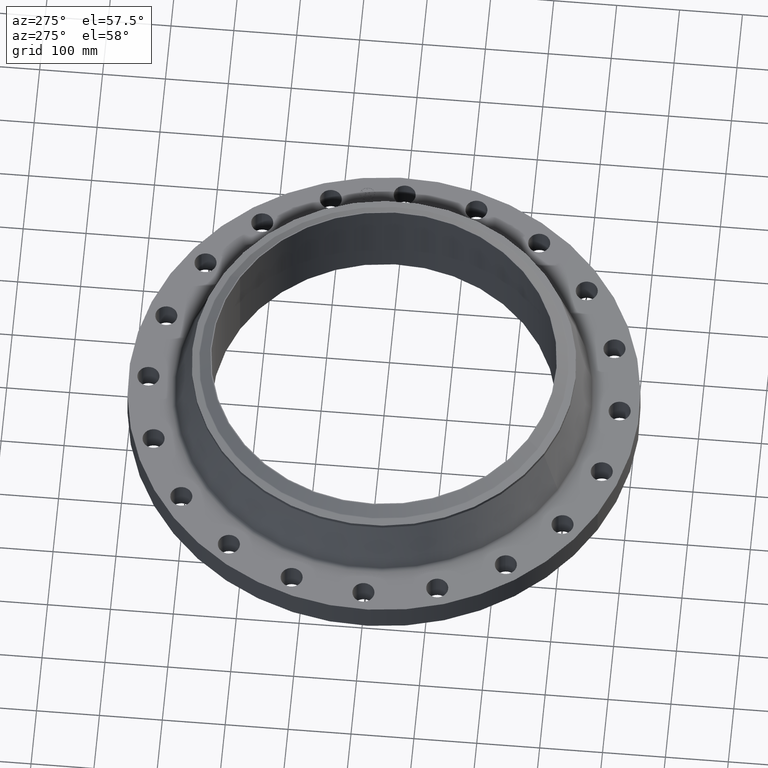
[diagram: clean part render]
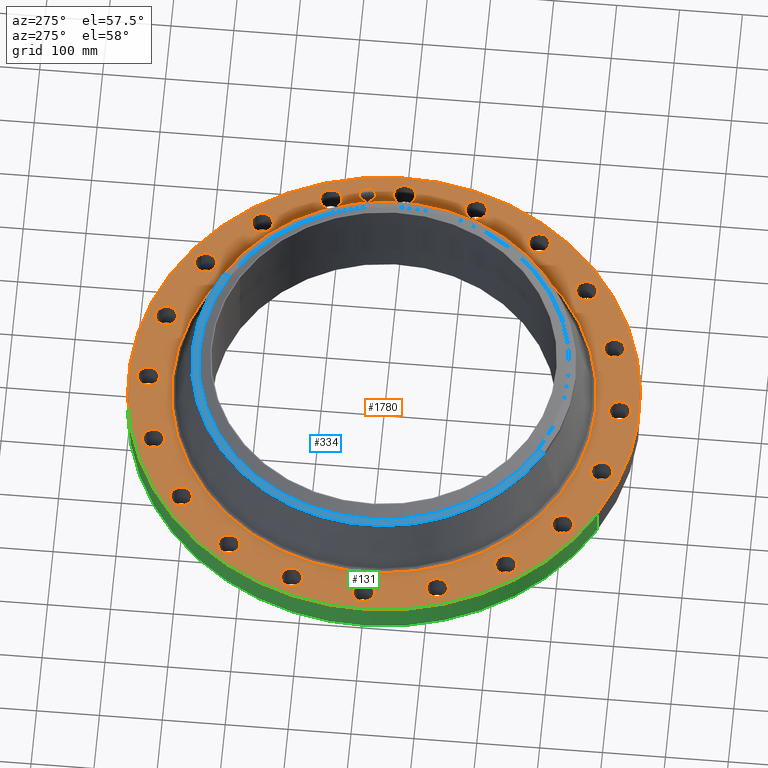
[diagram: same view with three faces highlighted in distinct colors, each labeled with its STEP entity id]
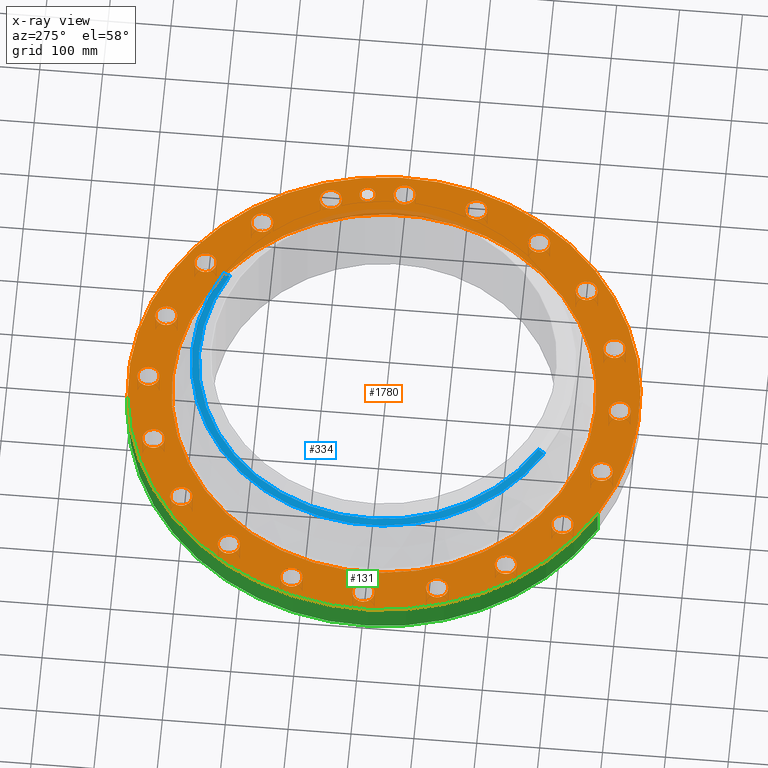
[diagram: x-ray of the same camera — body ghosted, the three highlighted faces saturated]
A machine part, auxiliary view with three faces highlighted in distinct colors.
The next image is the same camera in x-ray (body ghosted, the three faces saturated) — at least one of them is partly hidden behind the body in this view.
Their STEP definitions:

[orange] entity #1780 — the highlighted planar face has unit normal (0, 0, -1).
#65=AXIS2_PLACEMENT_3D('Circle Axis2P3D',#63,#64,$) ;
#82=AXIS2_PLACEMENT_3D('Circle Axis2P3D',#80,#81,$) ;
#115=AXIS2_PLACEMENT_3D('Circle Axis2P3D',#113,#114,$) ;
#139=AXIS2_PLACEMENT_3D('Circle Axis2P3D',#137,#138,$) ;
#156=AXIS2_PLACEMENT_3D('Circle Axis2P3D',#154,#155,$) ;
#191=AXIS2_PLACEMENT_3D('Circle Axis2P3D',#189,#190,$) ;
#873=AXIS2_PLACEMENT_3D('Circle Axis2P3D',#871,#872,$) ;
#885=AXIS2_PLACEMENT_3D('Circle Axis2P3D',#883,#884,$) ;
#916=AXIS2_PLACEMENT_3D('Circle Axis2P3D',#914,#915,$) ;
#928=AXIS2_PLACEMENT_3D('Circle Axis2P3D',#926,#927,$) ;
#959=AXIS2_PLACEMENT_3D('Circle Axis2P3D',#957,#958,$) ;
#971=AXIS2_PLACEMENT_3D('Circle Axis2P3D',#969,#970,$) ;
#1002=AXIS2_PLACEMENT_3D('Circle Axis2P3D',#1000,#1001,$) ;
#1014=AXIS2_PLACEMENT_3D('Circle Axis2P3D',#1012,#1013,$) ;
#1045=AXIS2_PLACEMENT_3D('Circle Axis2P3D',#1043,#1044,$) ;
#1057=AXIS2_PLACEMENT_3D('Circle Axis2P3D',#1055,#1056,$) ;
#1088=AXIS2_PLACEMENT_3D('Circle Axis2P3D',#1086,#1087,$) ;
#1100=AXIS2_PLACEMENT_3D('Circle Axis2P3D',#1098,#1099,$) ;
#1131=AXIS2_PLACEMENT_3D('Circle Axis2P3D',#1129,#1130,$) ;
#1143=AXIS2_PLACEMENT_3D('Circle Axis2P3D',#1141,#1142,$) ;
#1174=AXIS2_PLACEMENT_3D('Circle Axis2P3D',#1172,#1173,$) ;
#1186=AXIS2_PLACEMENT_3D('Circle Axis2P3D',#1184,#1185,$) ;
#1217=AXIS2_PLACEMENT_3D('Circle Axis2P3D',#1215,#1216,$) ;
#1229=AXIS2_PLACEMENT_3D('Circle Axis2P3D',#1227,#1228,$) ;
#1260=AXIS2_PLACEMENT_3D('Circle Axis2P3D',#1258,#1259,$) ;
#1272=AXIS2_PLACEMENT_3D('Circle Axis2P3D',#1270,#1271,$) ;
#1303=AXIS2_PLACEMENT_3D('Circle Axis2P3D',#1301,#1302,$) ;
#1315=AXIS2_PLACEMENT_3D('Circle Axis2P3D',#1313,#1314,$) ;
#1346=AXIS2_PLACEMENT_3D('Circle Axis2P3D',#1344,#1345,$) ;
#1358=AXIS2_PLACEMENT_3D('Circle Axis2P3D',#1356,#1357,$) ;
#1389=AXIS2_PLACEMENT_3D('Circle Axis2P3D',#1387,#1388,$) ;
#1401=AXIS2_PLACEMENT_3D('Circle Axis2P3D',#1399,#1400,$) ;
#1432=AXIS2_PLACEMENT_3D('Circle Axis2P3D',#1430,#1431,$) ;
#1444=AXIS2_PLACEMENT_3D('Circle Axis2P3D',#1442,#1443,$) ;
#1475=AXIS2_PLACEMENT_3D('Circle Axis2P3D',#1473,#1474,$) ;
#1487=AXIS2_PLACEMENT_3D('Circle Axis2P3D',#1485,#1486,$) ;
#1518=AXIS2_PLACEMENT_3D('Circle Axis2P3D',#1516,#1517,$) ;
#1530=AXIS2_PLACEMENT_3D('Circle Axis2P3D',#1528,#1529,$) ;
#1561=AXIS2_PLACEMENT_3D('Circle Axis2P3D',#1559,#1560,$) ;
#1573=AXIS2_PLACEMENT_3D('Circle Axis2P3D',#1571,#1572,$) ;
#1604=AXIS2_PLACEMENT_3D('Circle Axis2P3D',#1602,#1603,$) ;
#1616=AXIS2_PLACEMENT_3D('Circle Axis2P3D',#1614,#1615,$) ;
#1647=AXIS2_PLACEMENT_3D('Circle Axis2P3D',#1645,#1646,$) ;
#1659=AXIS2_PLACEMENT_3D('Circle Axis2P3D',#1657,#1658,$) ;
#1672=AXIS2_PLACEMENT_3D('Plane Axis2P3D',#1669,#1670,#1671) ;
#1764=AXIS2_PLACEMENT_3D('Circle Axis2P3D',#1762,#1763,$) ;
#1773=AXIS2_PLACEMENT_3D('Circle Axis2P3D',#1771,#1772,$) ;
#46=CARTESIAN_POINT('Vertex',(14.1444680324,0.330803621638,1.88000000001)) ;
#60=CARTESIAN_POINT('Vertex',(15.3555319678,-0.330803621638,1.88000000001)) ;
#63=CARTESIAN_POINT('Axis2P3D Location',(14.7500000001,0.,1.88000000001)) ;
#80=CARTESIAN_POINT('Axis2P3D Location',(14.7500000001,0.,1.88000000001)) ;
#110=CARTESIAN_POINT('Vertex',(-7.6708086177,-14.0413209903,1.88000000001)) ;
#113=CARTESIAN_POINT('Axis2P3D Location',(0.,0.,1.88000000001)) ;
#117=CARTESIAN_POINT('Vertex',(7.6708086177,14.0413209903,1.88000000001)) ;
#137=CARTESIAN_POINT('Axis2P3D Location',(0.,0.,1.88000000001)) ;
#154=CARTESIAN_POINT('Axis2P3D Location',(0.,0.,1.88000000001)) ;
#158=CARTESIAN_POINT('Vertex',(6.35074100419,11.6249534319,1.88000000001)) ;
#160=CARTESIAN_POINT('Vertex',(-6.35074100419,-11.6249534319,1.88000000001)) ;
#189=CARTESIAN_POINT('Axis2P3D Location',(0.,0.,1.88000000001)) ;
#861=CARTESIAN_POINT('Vertex',(-13.5544124326,4.05626805842,1.88000000001)) ;
#868=CARTESIAN_POINT('Vertex',(-14.5017547982,5.05973327568,1.88000000001)) ;
#871=CARTESIAN_POINT('Axis2P3D Location',(-14.0280836154,4.55800066705,1.88000000001)) ;
#883=CARTESIAN_POINT('Axis2P3D Location',(-14.0280836154,4.55800066705,1.88000000001)) ;
#904=CARTESIAN_POINT('Vertex',(11.6375565048,-8.04628395923,1.88000000001)) ;
#911=CARTESIAN_POINT('Vertex',(12.2284448294,-9.29338098346,1.88000000001)) ;
#914=CARTESIAN_POINT('Axis2P3D Location',(11.9330006671,-8.66983247135,1.88000000001)) ;
#926=CARTESIAN_POINT('Axis2P3D Location',(11.9330006671,-8.66983247135,1.88000000001)) ;
#947=CARTESIAN_POINT('Vertex',(-11.6375565048,8.04628395923,1.88000000001)) ;
#954=CARTESIAN_POINT('Vertex',(-12.2284448294,9.29338098346,1.88000000001)) ;
#957=CARTESIAN_POINT('Axis2P3D Location',(-11.9330006671,8.66983247135,1.88000000001)) ;
#969=CARTESIAN_POINT('Axis2P3D Location',(-11.9330006671,8.66983247135,1.88000000001)) ;
#990=CARTESIAN_POINT('Vertex',(8.58153546265,-11.2486735244,1.88000000001)) ;
#997=CARTESIAN_POINT('Vertex',(8.75812948005,-12.6173278098,1.88000000001)) ;
#1000=CARTESIAN_POINT('Axis2P3D Location',(8.66983247135,-11.9330006671,1.88000000001)) ;
#1012=CARTESIAN_POINT('Axis2P3D Location',(8.66983247135,-11.9330006671,1.88000000001)) ;
#1033=CARTESIAN_POINT('Vertex',(-8.58153546265,11.2486735244,1.88000000001)) ;
#1040=CARTESIAN_POINT('Vertex',(-8.75812948005,12.6173278098,1.88000000001)) ;
#1043=CARTESIAN_POINT('Axis2P3D Location',(-8.66983247135,11.9330006671,1.88000000001)) ;
#1055=CARTESIAN_POINT('Axis2P3D Location',(-8.66983247135,11.9330006671,1.88000000001)) ;
#1076=CARTESIAN_POINT('Vertex',(4.68549393836,-13.3499645508,1.88000000001)) ;
#1083=CARTESIAN_POINT('Vertex',(4.43050739573,-14.70620268,1.88000000001)) ;
#1086=CARTESIAN_POINT('Axis2P3D Location',(4.55800066705,-14.0280836154,1.88000000001)) ;
#1098=CARTESIAN_POINT('Axis2P3D Location',(4.55800066705,-14.0280836154,1.88000000001)) ;
#1119=CARTESIAN_POINT('Vertex',(-4.68549393836,13.3499645508,1.88000000001)) ;
#1126=CARTESIAN_POINT('Vertex',(-4.43050739573,14.70620268,1.88000000001)) ;
#1129=CARTESIAN_POINT('Axis2P3D Location',(-4.55800066705,14.0280836154,1.88000000001)) ;
#1141=CARTESIAN_POINT('Axis2P3D Location',(-4.55800066705,14.0280836154,1.88000000001)) ;
#1162=CARTESIAN_POINT('Vertex',(0.330803621638,-14.1444680324,1.88000000001)) ;
#1169=CARTESIAN_POINT('Vertex',(-0.330803621638,-15.3555319678,1.88000000001)) ;
#1172=CARTESIAN_POINT('Axis2P3D Location',(4.17833493703E-015,-14.7500000001,1.88000000001)) ;
#1184=CARTESIAN_POINT('Axis2P3D Location',(4.17833493703E-015,-14.7500000001,1.88000000001)) ;
#1205=CARTESIAN_POINT('Vertex',(-0.330803621638,14.1444680324,1.88000000001)) ;
#1212=CARTESIAN_POINT('Vertex',(0.330803621638,15.3555319678,1.88000000001)) ;
#1215=CARTESIAN_POINT('Axis2P3D Location',(-1.58101627338E-014,14.7500000001,1.88000000001)) ;
#1227=CARTESIAN_POINT('Axis2P3D Location',(-1.58101627338E-014,14.7500000001,1.88000000001)) ;
#1248=CARTESIAN_POINT('Vertex',(-4.05626805842,-13.5544124326,1.88000000001)) ;
#1255=CARTESIAN_POINT('Vertex',(-5.05973327568,-14.5017547982,1.88000000001)) ;
#1258=CARTESIAN_POINT('Axis2P3D Location',(-4.55800066705,-14.0280836154,1.88000000001)) ;
#1270=CARTESIAN_POINT('Axis2P3D Location',(-4.55800066705,-14.0280836154,1.88000000001)) ;
#1291=CARTESIAN_POINT('Vertex',(4.05626805842,13.5544124326,1.88000000001)) ;
#1298=CARTESIAN_POINT('Vertex',(5.05973327568,14.5017547982,1.88000000001)) ;
#1301=CARTESIAN_POINT('Axis2P3D Location',(4.55800066705,14.0280836154,1.88000000001)) ;
#1313=CARTESIAN_POINT('Axis2P3D Location',(4.55800066705,14.0280836154,1.88000000001)) ;
#1334=CARTESIAN_POINT('Vertex',(-8.04628395923,-11.6375565048,1.88000000001)) ;
#1341=CARTESIAN_POINT('Vertex',(-9.29338098346,-12.2284448294,1.88000000001)) ;
#1344=CARTESIAN_POINT('Axis2P3D Location',(-8.66983247135,-11.9330006671,1.88000000001)) ;
#1356=CARTESIAN_POINT('Axis2P3D Location',(-8.66983247135,-11.9330006671,1.88000000001)) ;
#1377=CARTESIAN_POINT('Vertex',(8.04628395923,11.6375565048,1.88000000001)) ;
#1384=CARTESIAN_POINT('Vertex',(9.29338098346,12.2284448294,1.88000000001)) ;
#1387=CARTESIAN_POINT('Axis2P3D Location',(8.66983247135,11.9330006671,1.88000000001)) ;
#1399=CARTESIAN_POINT('Axis2P3D Location',(8.66983247135,11.9330006671,1.88000000001)) ;
#1420=CARTESIAN_POINT('Vertex',(-11.2486735244,-8.58153546265,1.88000000001)) ;
#1427=CARTESIAN_POINT('Vertex',(-12.6173278098,-8.75812948005,1.88000000001)) ;
#1430=CARTESIAN_POINT('Axis2P3D Location',(-11.9330006671,-8.66983247135,1.88000000001)) ;
#1442=CARTESIAN_POINT('Axis2P3D Location',(-11.9330006671,-8.66983247135,1.88000000001)) ;
#1463=CARTESIAN_POINT('Vertex',(11.2486735244,8.58153546265,1.88000000001)) ;
#1470=CARTESIAN_POINT('Vertex',(12.6173278098,8.75812948005,1.88000000001)) ;
#1473=CARTESIAN_POINT('Axis2P3D Location',(11.9330006671,8.66983247135,1.88000000001)) ;
#1485=CARTESIAN_POINT('Axis2P3D Location',(11.9330006671,8.66983247135,1.88000000001)) ;
#1506=CARTESIAN_POINT('Vertex',(-13.3499645508,-4.68549393836,1.88000000001)) ;
#1513=CARTESIAN_POINT('Vertex',(-14.70620268,-4.43050739573,1.88000000001)) ;
#1516=CARTESIAN_POINT('Axis2P3D Location',(-14.0280836154,-4.55800066705,1.88000000001)) ;
#1528=CARTESIAN_POINT('Axis2P3D Location',(-14.0280836154,-4.55800066705,1.88000000001)) ;
#1549=CARTESIAN_POINT('Vertex',(13.3499645508,4.68549393836,1.88000000001)) ;
#1556=CARTESIAN_POINT('Vertex',(14.70620268,4.43050739573,1.88000000001)) ;
#1559=CARTESIAN_POINT('Axis2P3D Location',(14.0280836154,4.55800066705,1.88000000001)) ;
#1571=CARTESIAN_POINT('Axis2P3D Location',(14.0280836154,4.55800066705,1.88000000001)) ;
#1592=CARTESIAN_POINT('Vertex',(-14.1444680324,-0.330803621638,1.88000000001)) ;
#1599=CARTESIAN_POINT('Vertex',(-15.3555319678,0.330803621638,1.88000000001)) ;
#1602=CARTESIAN_POINT('Axis2P3D Location',(-14.7500000001,-8.35666987406E-015,1.88000000001)) ;
#1614=CARTESIAN_POINT('Axis2P3D Location',(-14.7500000001,-8.35666987406E-015,1.88000000001)) ;
#1635=CARTESIAN_POINT('Vertex',(13.5544124326,-4.05626805842,1.88000000001)) ;
#1642=CARTESIAN_POINT('Vertex',(14.5017547982,-5.05973327568,1.88000000001)) ;
#1645=CARTESIAN_POINT('Axis2P3D Location',(14.0280836154,-4.55800066705,1.88000000001)) ;
#1657=CARTESIAN_POINT('Axis2P3D Location',(14.0280836154,-4.55800066705,1.88000000001)) ;
#1669=CARTESIAN_POINT('Axis2P3D Location',(0.,16.0000000001,1.88000000001)) ;
#1762=CARTESIAN_POINT('Axis2P3D Location',(14.5684030238,2.30740835935,1.88000000001)) ;
#1766=CARTESIAN_POINT('Vertex',(14.4901859706,2.80125139776,1.88000000001)) ;
#1768=CARTESIAN_POINT('Vertex',(14.6466200771,1.81356532095,1.88000000001)) ;
#1771=CARTESIAN_POINT('Axis2P3D Location',(14.5684030238,2.30740835935,1.88000000001)) ;
#64=DIRECTION('Axis2P3D Direction',(0.,-0.,-0.0393700787402)) ;
#81=DIRECTION('Axis2P3D Direction',(0.,-0.,-0.0393700787402)) ;
#114=DIRECTION('Axis2P3D Direction',(0.,0.,-0.0393700787402)) ;
#138=DIRECTION('Axis2P3D Direction',(0.,0.,-0.0393700787402)) ;
#155=DIRECTION('Axis2P3D Direction',(0.,0.,-0.0393700787402)) ;
#190=DIRECTION('Axis2P3D Direction',(0.,0.,-0.0393700787402)) ;
#872=DIRECTION('Axis2P3D Direction',(0.,0.,-0.0393700787402)) ;
#884=DIRECTION('Axis2P3D Direction',(0.,0.,-0.0393700787402)) ;
#915=DIRECTION('Axis2P3D Direction',(0.,-0.,-0.0393700787402)) ;
#927=DIRECTION('Axis2P3D Direction',(0.,-0.,-0.0393700787402)) ;
#958=DIRECTION('Axis2P3D Direction',(0.,0.,-0.0393700787402)) ;
#970=DIRECTION('Axis2P3D Direction',(0.,0.,-0.0393700787402)) ;
#1001=DIRECTION('Axis2P3D Direction',(0.,-0.,-0.0393700787402)) ;
#1013=DIRECTION('Axis2P3D Direction',(0.,-0.,-0.0393700787402)) ;
#1044=DIRECTION('Axis2P3D Direction',(0.,0.,-0.0393700787402)) ;
#1056=DIRECTION('Axis2P3D Direction',(0.,0.,-0.0393700787402)) ;
#1087=DIRECTION('Axis2P3D Direction',(0.,-0.,-0.0393700787402)) ;
#1099=DIRECTION('Axis2P3D Direction',(0.,-0.,-0.0393700787402)) ;
#1130=DIRECTION('Axis2P3D Direction',(0.,0.,-0.0393700787402)) ;
#1142=DIRECTION('Axis2P3D Direction',(0.,0.,-0.0393700787402)) ;
#1173=DIRECTION('Axis2P3D Direction',(0.,-0.,-0.0393700787402)) ;
#1185=DIRECTION('Axis2P3D Direction',(0.,-0.,-0.0393700787402)) ;
#1216=DIRECTION('Axis2P3D Direction',(0.,0.,-0.0393700787402)) ;
#1228=DIRECTION('Axis2P3D Direction',(0.,0.,-0.0393700787402)) ;
#1259=DIRECTION('Axis2P3D Direction',(-0.,0.,-0.0393700787402)) ;
#1271=DIRECTION('Axis2P3D Direction',(-0.,0.,-0.0393700787402)) ;
#1302=DIRECTION('Axis2P3D Direction',(0.,0.,-0.0393700787402)) ;
#1314=DIRECTION('Axis2P3D Direction',(0.,0.,-0.0393700787402)) ;
#1345=DIRECTION('Axis2P3D Direction',(-0.,0.,-0.0393700787402)) ;
#1357=DIRECTION('Axis2P3D Direction',(-0.,0.,-0.0393700787402)) ;
#1388=DIRECTION('Axis2P3D Direction',(0.,0.,-0.0393700787402)) ;
#1400=DIRECTION('Axis2P3D Direction',(0.,0.,-0.0393700787402)) ;
#1431=DIRECTION('Axis2P3D Direction',(-0.,0.,-0.0393700787402)) ;
#1443=DIRECTION('Axis2P3D Direction',(-0.,0.,-0.0393700787402)) ;
#1474=DIRECTION('Axis2P3D Direction',(0.,0.,-0.0393700787402)) ;
#1486=DIRECTION('Axis2P3D Direction',(0.,0.,-0.0393700787402)) ;
#1517=DIRECTION('Axis2P3D Direction',(-0.,0.,-0.0393700787402)) ;
#1529=DIRECTION('Axis2P3D Direction',(-0.,0.,-0.0393700787402)) ;
#1560=DIRECTION('Axis2P3D Direction',(0.,0.,-0.0393700787402)) ;
#1572=DIRECTION('Axis2P3D Direction',(0.,0.,-0.0393700787402)) ;
#1603=DIRECTION('Axis2P3D Direction',(-0.,0.,-0.0393700787402)) ;
#1615=DIRECTION('Axis2P3D Direction',(-0.,0.,-0.0393700787402)) ;
#1646=DIRECTION('Axis2P3D Direction',(0.,-0.,-0.0393700787402)) ;
#1658=DIRECTION('Axis2P3D Direction',(0.,-0.,-0.0393700787402)) ;
#1670=DIRECTION('Axis2P3D Direction',(0.,0.,-0.0393700787402)) ;
#1671=DIRECTION('Axis2P3D XDirection',(0.0393700787402,0.,0.)) ;
#1763=DIRECTION('Axis2P3D Direction',(0.,0.,-0.0393700787402)) ;
#1772=DIRECTION('Axis2P3D Direction',(0.,0.,-0.0393700787402)) ;
#1675=ORIENTED_EDGE('',*,*,#141,.F.) ;
#1676=ORIENTED_EDGE('',*,*,#119,.F.) ;
#1679=ORIENTED_EDGE('',*,*,#67,.T.) ;
#1680=ORIENTED_EDGE('',*,*,#84,.T.) ;
#1683=ORIENTED_EDGE('',*,*,#193,.T.) ;
#1684=ORIENTED_EDGE('',*,*,#162,.T.) ;
#1687=ORIENTED_EDGE('',*,*,#1661,.T.) ;
#1688=ORIENTED_EDGE('',*,*,#1649,.T.) ;
#1691=ORIENTED_EDGE('',*,*,#930,.T.) ;
#1692=ORIENTED_EDGE('',*,*,#918,.T.) ;
#1695=ORIENTED_EDGE('',*,*,#1016,.T.) ;
#1696=ORIENTED_EDGE('',*,*,#1004,.T.) ;
#1699=ORIENTED_EDGE('',*,*,#1102,.T.) ;
#1700=ORIENTED_EDGE('',*,*,#1090,.T.) ;
#1703=ORIENTED_EDGE('',*,*,#1188,.T.) ;
#1704=ORIENTED_EDGE('',*,*,#1176,.T.) ;
#1707=ORIENTED_EDGE('',*,*,#1274,.T.) ;
#1708=ORIENTED_EDGE('',*,*,#1262,.T.) ;
#1711=ORIENTED_EDGE('',*,*,#1360,.T.) ;
#1712=ORIENTED_EDGE('',*,*,#1348,.T.) ;
#1715=ORIENTED_EDGE('',*,*,#1446,.T.) ;
#1716=ORIENTED_EDGE('',*,*,#1434,.T.) ;
#1719=ORIENTED_EDGE('',*,*,#1532,.T.) ;
#1720=ORIENTED_EDGE('',*,*,#1520,.T.) ;
#1723=ORIENTED_EDGE('',*,*,#1618,.T.) ;
#1724=ORIENTED_EDGE('',*,*,#1606,.T.) ;
#1727=ORIENTED_EDGE('',*,*,#887,.T.) ;
#1728=ORIENTED_EDGE('',*,*,#875,.T.) ;
#1731=ORIENTED_EDGE('',*,*,#973,.T.) ;
#1732=ORIENTED_EDGE('',*,*,#961,.T.) ;
#1735=ORIENTED_EDGE('',*,*,#1059,.T.) ;
#1736=ORIENTED_EDGE('',*,*,#1047,.T.) ;
#1739=ORIENTED_EDGE('',*,*,#1145,.T.) ;
#1740=ORIENTED_EDGE('',*,*,#1133,.T.) ;
#1743=ORIENTED_EDGE('',*,*,#1231,.T.) ;
#1744=ORIENTED_EDGE('',*,*,#1219,.T.) ;
#1747=ORIENTED_EDGE('',*,*,#1317,.T.) ;
#1748=ORIENTED_EDGE('',*,*,#1305,.T.) ;
#1751=ORIENTED_EDGE('',*,*,#1403,.T.) ;
#1752=ORIENTED_EDGE('',*,*,#1391,.T.) ;
#1755=ORIENTED_EDGE('',*,*,#1489,.T.) ;
#1756=ORIENTED_EDGE('',*,*,#1477,.T.) ;
#1759=ORIENTED_EDGE('',*,*,#1575,.T.) ;
#1760=ORIENTED_EDGE('',*,*,#1563,.T.) ;
#1777=ORIENTED_EDGE('',*,*,#1770,.T.) ;
#1778=ORIENTED_EDGE('',*,*,#1775,.T.) ;
#1681=FACE_BOUND('',#1678,.T.) ;
#1685=FACE_BOUND('',#1682,.T.) ;
#1689=FACE_BOUND('',#1686,.T.) ;
#1693=FACE_BOUND('',#1690,.T.) ;
#1697=FACE_BOUND('',#1694,.T.) ;
#1701=FACE_BOUND('',#1698,.T.) ;
#1705=FACE_BOUND('',#1702,.T.) ;
#1709=FACE_BOUND('',#1706,.T.) ;
#1713=FACE_BOUND('',#1710,.T.) ;
#1717=FACE_BOUND('',#1714,.T.) ;
#1721=FACE_BOUND('',#1718,.T.) ;
#1725=FACE_BOUND('',#1722,.T.) ;
#1729=FACE_BOUND('',#1726,.T.) ;
#1733=FACE_BOUND('',#1730,.T.) ;
#1737=FACE_BOUND('',#1734,.T.) ;
#1741=FACE_BOUND('',#1738,.T.) ;
#1745=FACE_BOUND('',#1742,.T.) ;
#1749=FACE_BOUND('',#1746,.T.) ;
#1753=FACE_BOUND('',#1750,.T.) ;
#1757=FACE_BOUND('',#1754,.T.) ;
#1761=FACE_BOUND('',#1758,.T.) ;
#1779=FACE_BOUND('',#1776,.T.) ;
#1780=ADVANCED_FACE('PartBody',(#1677,#1681,#1685,#1689,#1693,#1697,#1701,#1705,#1709,#1713,#1717,#1721,#1725,#1729,#1733,#1737,#1741,#1745,#1749,#1753,#1757,#1761,#1779),#1673,.F.) ;
#66=CIRCLE('generated circle',#65,0.690000000003) ;
#83=CIRCLE('generated circle',#82,0.690000000003) ;
#116=CIRCLE('generated circle',#115,16.0000000001) ;
#140=CIRCLE('generated circle',#139,16.0000000001) ;
#157=CIRCLE('generated circle',#156,13.2465638411) ;
#192=CIRCLE('generated circle',#191,13.2465638411) ;
#874=CIRCLE('generated circle',#873,0.690000000003) ;
#886=CIRCLE('generated circle',#885,0.690000000003) ;
#917=CIRCLE('generated circle',#916,0.690000000003) ;
#929=CIRCLE('generated circle',#928,0.690000000003) ;
#960=CIRCLE('generated circle',#959,0.690000000003) ;
#972=CIRCLE('generated circle',#971,0.690000000003) ;
#1003=CIRCLE('generated circle',#1002,0.690000000003) ;
#1015=CIRCLE('generated circle',#1014,0.690000000003) ;
#1046=CIRCLE('generated circle',#1045,0.690000000003) ;
#1058=CIRCLE('generated circle',#1057,0.690000000003) ;
#1089=CIRCLE('generated circle',#1088,0.690000000003) ;
#1101=CIRCLE('generated circle',#1100,0.690000000003) ;
#1132=CIRCLE('generated circle',#1131,0.690000000003) ;
#1144=CIRCLE('generated circle',#1143,0.690000000003) ;
#1175=CIRCLE('generated circle',#1174,0.690000000003) ;
#1187=CIRCLE('generated circle',#1186,0.690000000003) ;
#1218=CIRCLE('generated circle',#1217,0.690000000003) ;
#1230=CIRCLE('generated circle',#1229,0.690000000003) ;
#1261=CIRCLE('generated circle',#1260,0.690000000003) ;
#1273=CIRCLE('generated circle',#1272,0.690000000003) ;
#1304=CIRCLE('generated circle',#1303,0.690000000003) ;
#1316=CIRCLE('generated circle',#1315,0.690000000003) ;
#1347=CIRCLE('generated circle',#1346,0.690000000003) ;
#1359=CIRCLE('generated circle',#1358,0.690000000003) ;
#1390=CIRCLE('generated circle',#1389,0.690000000003) ;
#1402=CIRCLE('generated circle',#1401,0.690000000003) ;
#1433=CIRCLE('generated circle',#1432,0.690000000003) ;
#1445=CIRCLE('generated circle',#1444,0.690000000003) ;
#1476=CIRCLE('generated circle',#1475,0.690000000003) ;
#1488=CIRCLE('generated circle',#1487,0.690000000003) ;
#1519=CIRCLE('generated circle',#1518,0.690000000003) ;
#1531=CIRCLE('generated circle',#1530,0.690000000003) ;
#1562=CIRCLE('generated circle',#1561,0.690000000003) ;
#1574=CIRCLE('generated circle',#1573,0.690000000003) ;
#1605=CIRCLE('generated circle',#1604,0.690000000003) ;
#1617=CIRCLE('generated circle',#1616,0.690000000003) ;
#1648=CIRCLE('generated circle',#1647,0.690000000003) ;
#1660=CIRCLE('generated circle',#1659,0.690000000003) ;
#1765=CIRCLE('generated circle',#1764,0.499998853999) ;
#1774=CIRCLE('generated circle',#1773,0.499998853999) ;
#67=EDGE_CURVE('',#47,#61,#66,.T.) ;
#84=EDGE_CURVE('',#61,#47,#83,.T.) ;
#119=EDGE_CURVE('',#111,#118,#116,.T.) ;
#141=EDGE_CURVE('',#118,#111,#140,.T.) ;
#162=EDGE_CURVE('',#159,#161,#157,.T.) ;
#193=EDGE_CURVE('',#161,#159,#192,.T.) ;
#875=EDGE_CURVE('',#862,#869,#874,.T.) ;
#887=EDGE_CURVE('',#869,#862,#886,.T.) ;
#918=EDGE_CURVE('',#905,#912,#917,.T.) ;
#930=EDGE_CURVE('',#912,#905,#929,.T.) ;
#961=EDGE_CURVE('',#948,#955,#960,.T.) ;
#973=EDGE_CURVE('',#955,#948,#972,.T.) ;
#1004=EDGE_CURVE('',#991,#998,#1003,.T.) ;
#1016=EDGE_CURVE('',#998,#991,#1015,.T.) ;
#1047=EDGE_CURVE('',#1034,#1041,#1046,.T.) ;
#1059=EDGE_CURVE('',#1041,#1034,#1058,.T.) ;
#1090=EDGE_CURVE('',#1077,#1084,#1089,.T.) ;
#1102=EDGE_CURVE('',#1084,#1077,#1101,.T.) ;
#1133=EDGE_CURVE('',#1120,#1127,#1132,.T.) ;
#1145=EDGE_CURVE('',#1127,#1120,#1144,.T.) ;
#1176=EDGE_CURVE('',#1163,#1170,#1175,.T.) ;
#1188=EDGE_CURVE('',#1170,#1163,#1187,.T.) ;
#1219=EDGE_CURVE('',#1206,#1213,#1218,.T.) ;
#1231=EDGE_CURVE('',#1213,#1206,#1230,.T.) ;
#1262=EDGE_CURVE('',#1249,#1256,#1261,.T.) ;
#1274=EDGE_CURVE('',#1256,#1249,#1273,.T.) ;
#1305=EDGE_CURVE('',#1292,#1299,#1304,.T.) ;
#1317=EDGE_CURVE('',#1299,#1292,#1316,.T.) ;
#1348=EDGE_CURVE('',#1335,#1342,#1347,.T.) ;
#1360=EDGE_CURVE('',#1342,#1335,#1359,.T.) ;
#1391=EDGE_CURVE('',#1378,#1385,#1390,.T.) ;
#1403=EDGE_CURVE('',#1385,#1378,#1402,.T.) ;
#1434=EDGE_CURVE('',#1421,#1428,#1433,.T.) ;
#1446=EDGE_CURVE('',#1428,#1421,#1445,.T.) ;
#1477=EDGE_CURVE('',#1464,#1471,#1476,.T.) ;
#1489=EDGE_CURVE('',#1471,#1464,#1488,.T.) ;
#1520=EDGE_CURVE('',#1507,#1514,#1519,.T.) ;
#1532=EDGE_CURVE('',#1514,#1507,#1531,.T.) ;
#1563=EDGE_CURVE('',#1550,#1557,#1562,.T.) ;
#1575=EDGE_CURVE('',#1557,#1550,#1574,.T.) ;
#1606=EDGE_CURVE('',#1593,#1600,#1605,.T.) ;
#1618=EDGE_CURVE('',#1600,#1593,#1617,.T.) ;
#1649=EDGE_CURVE('',#1636,#1643,#1648,.T.) ;
#1661=EDGE_CURVE('',#1643,#1636,#1660,.T.) ;
#1770=EDGE_CURVE('',#1767,#1769,#1765,.T.) ;
#1775=EDGE_CURVE('',#1769,#1767,#1774,.T.) ;
#1674=EDGE_LOOP('',(#1675,#1676)) ;
#1678=EDGE_LOOP('',(#1679,#1680)) ;
#1682=EDGE_LOOP('',(#1683,#1684)) ;
#1686=EDGE_LOOP('',(#1687,#1688)) ;
#1690=EDGE_LOOP('',(#1691,#1692)) ;
#1694=EDGE_LOOP('',(#1695,#1696)) ;
#1698=EDGE_LOOP('',(#1699,#1700)) ;
#1702=EDGE_LOOP('',(#1703,#1704)) ;
#1706=EDGE_LOOP('',(#1707,#1708)) ;
#1710=EDGE_LOOP('',(#1711,#1712)) ;
#1714=EDGE_LOOP('',(#1715,#1716)) ;
#1718=EDGE_LOOP('',(#1719,#1720)) ;
#1722=EDGE_LOOP('',(#1723,#1724)) ;
#1726=EDGE_LOOP('',(#1727,#1728)) ;
#1730=EDGE_LOOP('',(#1731,#1732)) ;
#1734=EDGE_LOOP('',(#1735,#1736)) ;
#1738=EDGE_LOOP('',(#1739,#1740)) ;
#1742=EDGE_LOOP('',(#1743,#1744)) ;
#1746=EDGE_LOOP('',(#1747,#1748)) ;
#1750=EDGE_LOOP('',(#1751,#1752)) ;
#1754=EDGE_LOOP('',(#1755,#1756)) ;
#1758=EDGE_LOOP('',(#1759,#1760)) ;
#1776=EDGE_LOOP('',(#1777,#1778)) ;
#1677=FACE_OUTER_BOUND('',#1674,.T.) ;
#1673=PLANE('',#1672) ;
#47=VERTEX_POINT('',#46) ;
#61=VERTEX_POINT('',#60) ;
#111=VERTEX_POINT('',#110) ;
#118=VERTEX_POINT('',#117) ;
#159=VERTEX_POINT('',#158) ;
#161=VERTEX_POINT('',#160) ;
#862=VERTEX_POINT('',#861) ;
#869=VERTEX_POINT('',#868) ;
#905=VERTEX_POINT('',#904) ;
#912=VERTEX_POINT('',#911) ;
#948=VERTEX_POINT('',#947) ;
#955=VERTEX_POINT('',#954) ;
#991=VERTEX_POINT('',#990) ;
#998=VERTEX_POINT('',#997) ;
#1034=VERTEX_POINT('',#1033) ;
#1041=VERTEX_POINT('',#1040) ;
#1077=VERTEX_POINT('',#1076) ;
#1084=VERTEX_POINT('',#1083) ;
#1120=VERTEX_POINT('',#1119) ;
#1127=VERTEX_POINT('',#1126) ;
#1163=VERTEX_POINT('',#1162) ;
#1170=VERTEX_POINT('',#1169) ;
#1206=VERTEX_POINT('',#1205) ;
#1213=VERTEX_POINT('',#1212) ;
#1249=VERTEX_POINT('',#1248) ;
#1256=VERTEX_POINT('',#1255) ;
#1292=VERTEX_POINT('',#1291) ;
#1299=VERTEX_POINT('',#1298) ;
#1335=VERTEX_POINT('',#1334) ;
#1342=VERTEX_POINT('',#1341) ;
#1378=VERTEX_POINT('',#1377) ;
#1385=VERTEX_POINT('',#1384) ;
#1421=VERTEX_POINT('',#1420) ;
#1428=VERTEX_POINT('',#1427) ;
#1464=VERTEX_POINT('',#1463) ;
#1471=VERTEX_POINT('',#1470) ;
#1507=VERTEX_POINT('',#1506) ;
#1514=VERTEX_POINT('',#1513) ;
#1550=VERTEX_POINT('',#1549) ;
#1557=VERTEX_POINT('',#1556) ;
#1593=VERTEX_POINT('',#1592) ;
#1600=VERTEX_POINT('',#1599) ;
#1636=VERTEX_POINT('',#1635) ;
#1643=VERTEX_POINT('',#1642) ;
#1767=VERTEX_POINT('',#1766) ;
#1769=VERTEX_POINT('',#1768) ;

[blue] entity #334 — the highlighted conical surface has half-angle 80 deg.
#282=AXIS2_PLACEMENT_3D('Circle Axis2P3D',#280,#281,$) ;
#295=AXIS2_PLACEMENT_3D('Cone Axis2P3D',#292,#293,#294) ;
#325=AXIS2_PLACEMENT_3D('Circle Axis2P3D',#323,#324,$) ;
#258=CARTESIAN_POINT('Vertex',(-5.75310646327,-10.5309907427,5.38976534183)) ;
#265=CARTESIAN_POINT('Vertex',(5.75310646327,10.5309907427,5.38976534183)) ;
#280=CARTESIAN_POINT('Axis2P3D Location',(0.,0.,5.38976534183)) ;
#292=CARTESIAN_POINT('Axis2P3D Location',(0.,0.,5.46715126594)) ;
#297=CARTESIAN_POINT('Line Origine',(5.64790195005,10.338415173,5.42845830389)) ;
#301=CARTESIAN_POINT('Vertex',(5.54269743683,10.1458396033,5.46715126594)) ;
#308=CARTESIAN_POINT('Vertex',(-5.54269743683,-10.1458396033,5.46715126594)) ;
#311=CARTESIAN_POINT('Line Origine',(-5.64790195005,-10.338415173,5.42845830389)) ;
#323=CARTESIAN_POINT('Axis2P3D Location',(0.,0.,5.46715126594)) ;
#281=DIRECTION('Axis2P3D Direction',(0.,0.,-0.0393700787402)) ;
#293=DIRECTION('Axis2P3D Direction',(-0.,-0.,-0.0393700787402)) ;
#294=DIRECTION('Axis2P3D XDirection',(-0.0188750212049,-0.0345504945626,0.)) ;
#298=DIRECTION('Vector Direction',(0.0185882672208,0.0340255949157,-0.00683654242783)) ;
#312=DIRECTION('Vector Direction',(-0.0185882672208,-0.0340255949157,-0.00683654242783)) ;
#324=DIRECTION('Axis2P3D Direction',(0.,-0.,-0.0393700787402)) ;
#299=VECTOR('Line Direction',#298,0.0393700787402) ;
#313=VECTOR('Line Direction',#312,0.0393700787402) ;
#329=ORIENTED_EDGE('',*,*,#315,.F.) ;
#330=ORIENTED_EDGE('',*,*,#327,.T.) ;
#331=ORIENTED_EDGE('',*,*,#303,.T.) ;
#332=ORIENTED_EDGE('',*,*,#284,.F.) ;
#334=ADVANCED_FACE('PartBody',(#333),#296,.T.) ;
#283=CIRCLE('generated circle',#282,12.) ;
#326=CIRCLE('generated circle',#325,11.5611226156) ;
#296=CONICAL_SURFACE('Cone',#295,11.5611226156,1.3962634016) ;
#284=EDGE_CURVE('',#259,#266,#283,.T.) ;
#303=EDGE_CURVE('',#302,#266,#300,.T.) ;
#315=EDGE_CURVE('',#309,#259,#314,.T.) ;
#327=EDGE_CURVE('',#309,#302,#326,.T.) ;
#328=EDGE_LOOP('',(#329,#330,#331,#332)) ;
#333=FACE_OUTER_BOUND('',#328,.T.) ;
#300=LINE('Line',#297,#299) ;
#314=LINE('Line',#311,#313) ;
#259=VERTEX_POINT('',#258) ;
#266=VERTEX_POINT('',#265) ;
#302=VERTEX_POINT('',#301) ;
#309=VERTEX_POINT('',#308) ;

[green] entity #131 — the highlighted cylindrical surface (partial cylindrical patch) has radius 406.4 mm, axis along (0, 0, -1).
#95=AXIS2_PLACEMENT_3D('Cylinder Axis2P3D',#92,#93,#94) ;
#99=AXIS2_PLACEMENT_3D('Circle Axis2P3D',#97,#98,$) ;
#115=AXIS2_PLACEMENT_3D('Circle Axis2P3D',#113,#114,$) ;
#92=CARTESIAN_POINT('Axis2P3D Location',(0.,0.,3.05000000001)) ;
#97=CARTESIAN_POINT('Axis2P3D Location',(0.,0.,1.67844740731E-015)) ;
#101=CARTESIAN_POINT('Vertex',(-7.6708086177,-14.0413209903,2.23792987641E-015)) ;
#103=CARTESIAN_POINT('Vertex',(7.6708086177,14.0413209903,2.23792987641E-015)) ;
#106=CARTESIAN_POINT('Line Origine',(-7.6708086177,-14.0413209903,0.940000000004)) ;
#110=CARTESIAN_POINT('Vertex',(-7.6708086177,-14.0413209903,1.88000000001)) ;
#113=CARTESIAN_POINT('Axis2P3D Location',(0.,0.,1.88000000001)) ;
#117=CARTESIAN_POINT('Vertex',(7.6708086177,14.0413209903,1.88000000001)) ;
#120=CARTESIAN_POINT('Line Origine',(7.6708086177,14.0413209903,0.940000000004)) ;
#93=DIRECTION('Axis2P3D Direction',(0.,0.,-0.0393700787402)) ;
#94=DIRECTION('Axis2P3D XDirection',(0.0188750212049,0.0345504945626,0.)) ;
#98=DIRECTION('Axis2P3D Direction',(0.,0.,-0.0393700787402)) ;
#107=DIRECTION('Vector Direction',(0.,0.,-0.0393700787402)) ;
#114=DIRECTION('Axis2P3D Direction',(0.,0.,-0.0393700787402)) ;
#121=DIRECTION('Vector Direction',(0.,0.,-0.0393700787402)) ;
#108=VECTOR('Line Direction',#107,0.0393700787402) ;
#122=VECTOR('Line Direction',#121,0.0393700787402) ;
#126=ORIENTED_EDGE('',*,*,#105,.F.) ;
#127=ORIENTED_EDGE('',*,*,#112,.T.) ;
#128=ORIENTED_EDGE('',*,*,#119,.T.) ;
#129=ORIENTED_EDGE('',*,*,#124,.F.) ;
#131=ADVANCED_FACE('PartBody',(#130),#96,.T.) ;
#100=CIRCLE('generated circle',#99,16.0000000001) ;
#116=CIRCLE('generated circle',#115,16.0000000001) ;
#96=CYLINDRICAL_SURFACE('generated cylinder',#95,16.0000000001) ;
#105=EDGE_CURVE('',#102,#104,#100,.T.) ;
#112=EDGE_CURVE('',#102,#111,#109,.F.) ;
#119=EDGE_CURVE('',#111,#118,#116,.T.) ;
#124=EDGE_CURVE('',#104,#118,#123,.F.) ;
#125=EDGE_LOOP('',(#126,#127,#128,#129)) ;
#130=FACE_OUTER_BOUND('',#125,.T.) ;
#109=LINE('Line',#106,#108) ;
#123=LINE('Line',#120,#122) ;
#102=VERTEX_POINT('',#101) ;
#104=VERTEX_POINT('',#103) ;
#111=VERTEX_POINT('',#110) ;
#118=VERTEX_POINT('',#117) ;